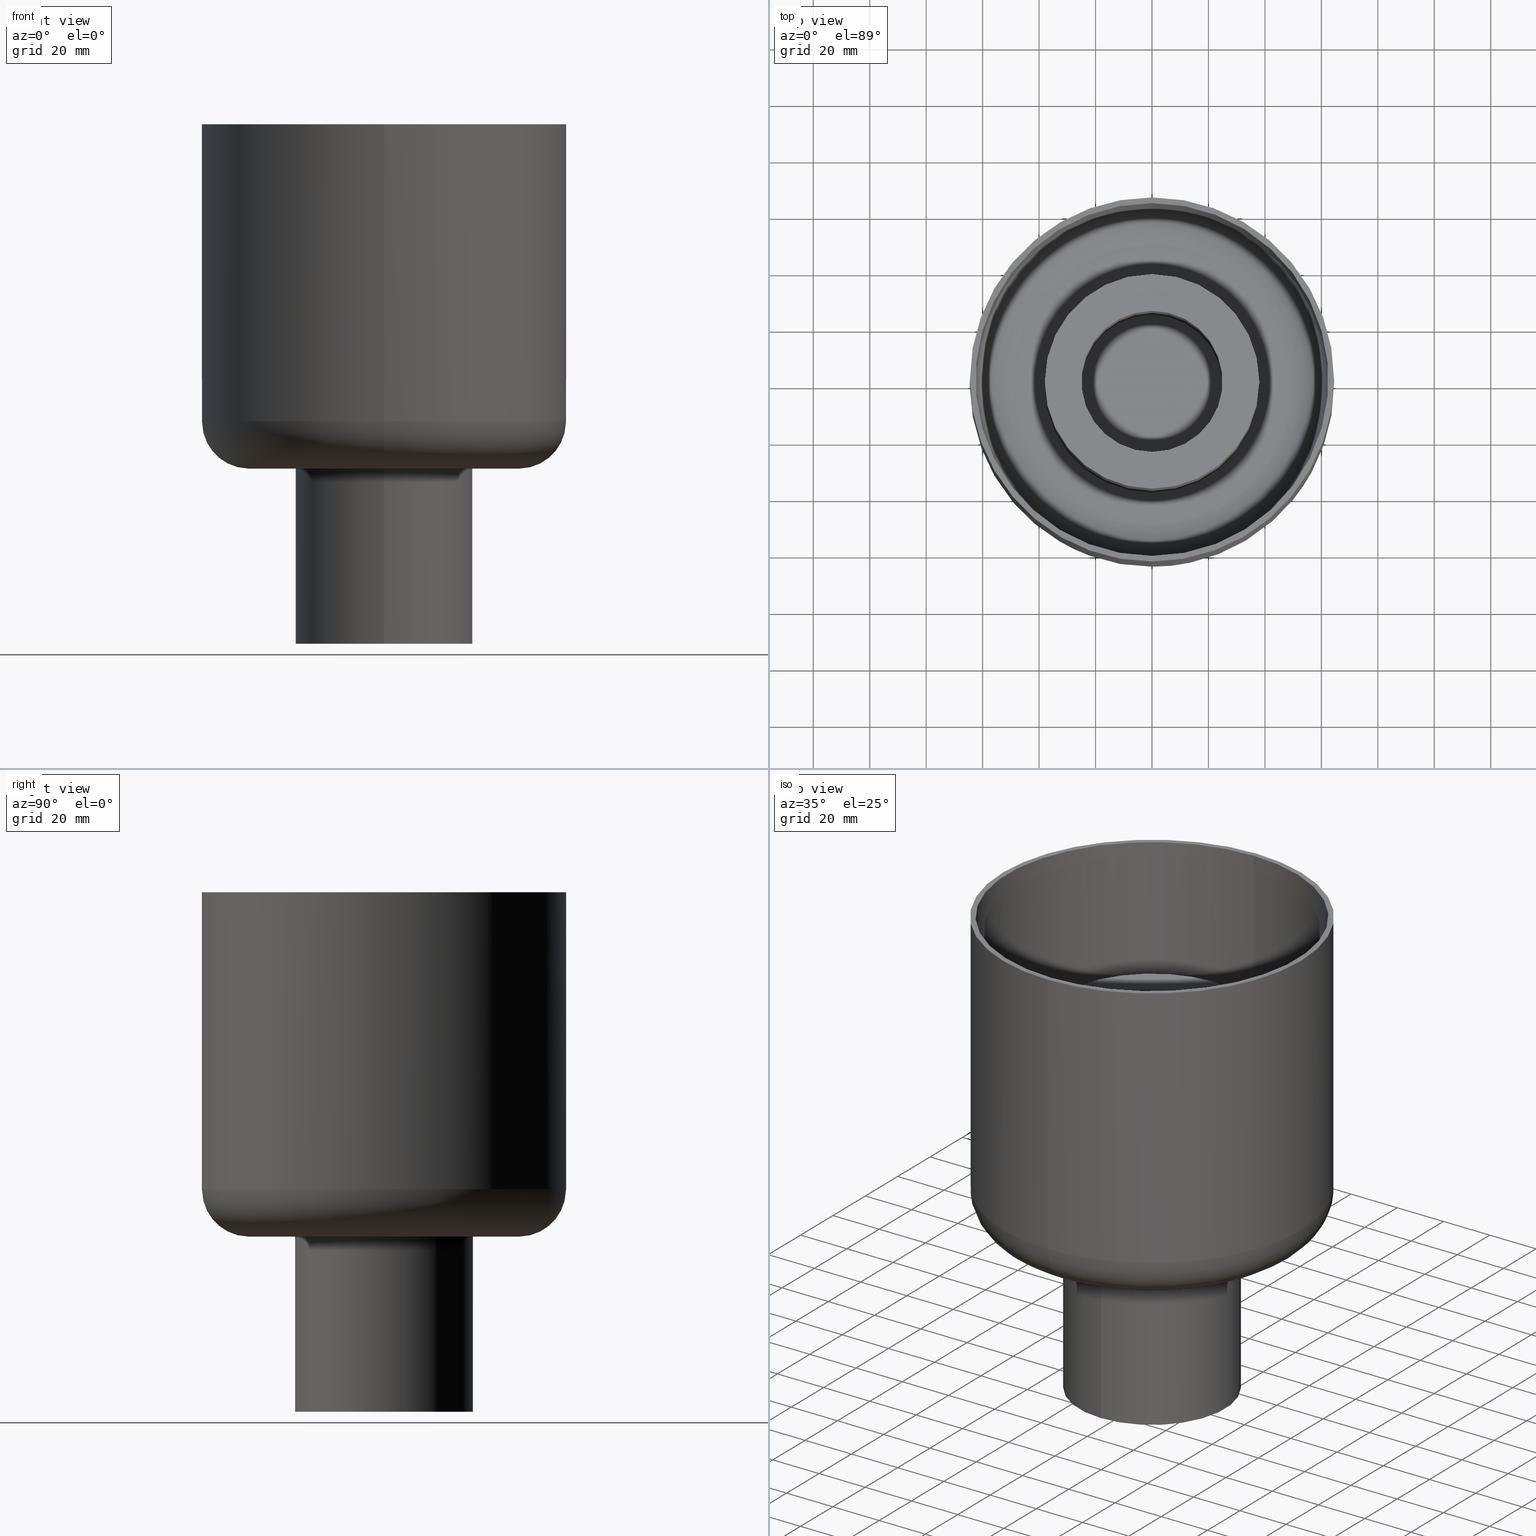
[diagram: canonical four-view strip — front | top / right | iso, engineering-drawing reading convention]
A machine part, canonical four-view strip (front | top / right | iso — engineering-drawing reading convention). The complete STEP part file that produces these views, byte-faithful:
ISO-10303-21;
HEADER;
/* Generated by software containing ST-Developer
 * from STEP Tools, Inc. (www.steptools.com) 
 */

FILE_DESCRIPTION(
/* description */ (''),
/* implementation_level */ '2;1');

FILE_NAME(
/* name */ 
'G:\\Workspace\\resitec\\Packs\\Kategorie\\Glockensifons\\RS560.60.sat.
ipt.stp',
/* time_stamp */ '2020-12-03T12:01:40+01:00',
/* author */ ('ndmes'),
/* organization */ (''),
/* preprocessor_version */ 'ST-DEVELOPER v18.1',
/* originating_system */ 'Autodesk Inventor 2021',
/* authorisation */ '');

FILE_SCHEMA (('AUTOMOTIVE_DESIGN { 1 0 10303 214 3 1 1 }'));
ENDSEC;

DATA;
#10=MECHANICAL_DESIGN_GEOMETRIC_PRESENTATION_REPRESENTATION('',(#15,#16,
#17),#863);
#11=SHAPE_REPRESENTATION_RELATIONSHIP('SRR','None',#870,#12);
#12=ADVANCED_BREP_SHAPE_REPRESENTATION('',(#18,#19,#20),#862);
#13=FACE_BOUND('',#78,.T.);
#14=FACE_BOUND('',#80,.T.);
#15=STYLED_ITEM('',(#879),#18);
#16=STYLED_ITEM('',(#879),#19);
#17=STYLED_ITEM('',(#879),#20);
#18=MANIFOLD_SOLID_BREP('Solid1',#325);
#19=MANIFOLD_SOLID_BREP('Solid2',#326);
#20=MANIFOLD_SOLID_BREP('Solid3',#327);
#21=TOROIDAL_SURFACE('',#357,49.7719268501219,12.7280731498783);
#22=TOROIDAL_SURFACE('',#358,49.7719268501219,12.7280731498783);
#23=TOROIDAL_SURFACE('',#363,47.7044883655415,16.7955116344587);
#24=TOROIDAL_SURFACE('',#364,47.7044883655415,16.7955116344587);
#25=PLANE('',#351);
#26=PLANE('',#353);
#27=PLANE('',#359);
#28=PLANE('',#360);
#29=PLANE('',#361);
#30=PLANE('',#362);
#31=PLANE('',#377);
#32=PLANE('',#378);
#33=PLANE('',#385);
#34=PLANE('',#386);
#35=FACE_OUTER_BOUND('',#59,.T.);
#36=FACE_OUTER_BOUND('',#60,.T.);
#37=FACE_OUTER_BOUND('',#61,.T.);
#38=FACE_OUTER_BOUND('',#62,.T.);
#39=FACE_OUTER_BOUND('',#63,.T.);
#40=FACE_OUTER_BOUND('',#64,.T.);
#41=FACE_OUTER_BOUND('',#65,.T.);
#42=FACE_OUTER_BOUND('',#66,.T.);
#43=FACE_OUTER_BOUND('',#67,.T.);
#44=FACE_OUTER_BOUND('',#68,.T.);
#45=FACE_OUTER_BOUND('',#69,.T.);
#46=FACE_OUTER_BOUND('',#70,.T.);
#47=FACE_OUTER_BOUND('',#71,.T.);
#48=FACE_OUTER_BOUND('',#72,.T.);
#49=FACE_OUTER_BOUND('',#73,.T.);
#50=FACE_OUTER_BOUND('',#74,.T.);
#51=FACE_OUTER_BOUND('',#75,.T.);
#52=FACE_OUTER_BOUND('',#76,.T.);
#53=FACE_OUTER_BOUND('',#77,.T.);
#54=FACE_OUTER_BOUND('',#79,.T.);
#55=FACE_OUTER_BOUND('',#81,.T.);
#56=FACE_OUTER_BOUND('',#82,.T.);
#57=FACE_OUTER_BOUND('',#83,.T.);
#58=FACE_OUTER_BOUND('',#84,.T.);
#59=EDGE_LOOP('',(#207,#208,#209,#210));
#60=EDGE_LOOP('',(#211,#212,#213,#214));
#61=EDGE_LOOP('',(#215,#216,#217,#218));
#62=EDGE_LOOP('',(#219,#220,#221,#222));
#63=EDGE_LOOP('',(#223,#224,#225,#226));
#64=EDGE_LOOP('',(#227,#228,#229,#230));
#65=EDGE_LOOP('',(#231,#232,#233,#234));
#66=EDGE_LOOP('',(#235,#236,#237,#238));
#67=EDGE_LOOP('',(#239,#240));
#68=EDGE_LOOP('',(#241,#242));
#69=EDGE_LOOP('',(#243,#244));
#70=EDGE_LOOP('',(#245,#246));
#71=EDGE_LOOP('',(#247,#248,#249,#250));
#72=EDGE_LOOP('',(#251,#252,#253,#254));
#73=EDGE_LOOP('',(#255,#256,#257,#258));
#74=EDGE_LOOP('',(#259,#260,#261,#262));
#75=EDGE_LOOP('',(#263,#264,#265,#266));
#76=EDGE_LOOP('',(#267,#268,#269,#270));
#77=EDGE_LOOP('',(#271,#272));
#78=EDGE_LOOP('',(#273,#274));
#79=EDGE_LOOP('',(#275,#276));
#80=EDGE_LOOP('',(#277,#278));
#81=EDGE_LOOP('',(#279,#280,#281,#282));
#82=EDGE_LOOP('',(#283,#284,#285,#286));
#83=EDGE_LOOP('',(#287,#288));
#84=EDGE_LOOP('',(#289,#290));
#85=CIRCLE('',#348,64.5000000000002);
#86=CIRCLE('',#350,64.5000000000002);
#87=CIRCLE('',#352,62.5000000000002);
#88=CIRCLE('',#354,62.5000000000002);
#89=CIRCLE('',#366,25.);
#90=CIRCLE('',#367,25.);
#91=CIRCLE('',#369,25.);
#92=CIRCLE('',#370,25.);
#93=CIRCLE('',#372,38.);
#94=CIRCLE('',#373,38.);
#95=CIRCLE('',#375,38.);
#96=CIRCLE('',#376,38.);
#97=CIRCLE('',#380,31.5);
#98=CIRCLE('',#381,31.5);
#99=CIRCLE('',#383,31.5);
#100=CIRCLE('',#384,31.5);
#101=LINE('',#499,#115);
#102=LINE('',#502,#116);
#103=LINE('',#518,#117);
#104=LINE('',#521,#118);
#105=LINE('',#526,#119);
#106=LINE('',#538,#120);
#107=LINE('',#585,#121);
#108=LINE('',#590,#122);
#109=LINE('',#825,#123);
#110=LINE('',#828,#124);
#111=LINE('',#837,#125);
#112=LINE('',#840,#126);
#113=LINE('',#851,#127);
#114=LINE('',#854,#128);
#115=VECTOR('',#391,304.8);
#116=VECTOR('',#394,304.8);
#117=VECTOR('',#401,304.8);
#118=VECTOR('',#404,304.8);
#119=VECTOR('',#411,304.8);
#120=VECTOR('',#412,304.8);
#121=VECTOR('',#421,304.8);
#122=VECTOR('',#426,304.8);
#123=VECTOR('',#437,304.8);
#124=VECTOR('',#440,304.8);
#125=VECTOR('',#451,304.8);
#126=VECTOR('',#454,304.8);
#127=VECTOR('',#469,304.8);
#128=VECTOR('',#472,304.8);
#129=B_SPLINE_CURVE_WITH_KNOTS('',3,(#487,#488,#489,#490,#491,#492,#493,
#494,#495,#496,#497),.UNSPECIFIED.,.F.,.F.,(4,1,1,1,1,1,1,1,4),(0.,0.125,
0.25,0.375,0.5,0.625,0.75,0.875,1.),.UNSPECIFIED.);
#130=B_SPLINE_CURVE_WITH_KNOTS('',3,(#504,#505,#506,#507,#508,#509,#510,
#511,#512,#513,#514),.UNSPECIFIED.,.F.,.F.,(4,1,1,1,1,1,1,1,4),(0.,0.125,
0.25,0.375,0.5,0.625,0.75,0.875,1.),.UNSPECIFIED.);
#131=B_SPLINE_CURVE_WITH_KNOTS('',3,(#528,#529,#530,#531,#532,#533,#534,
#535,#536,#537),.UNSPECIFIED.,.F.,.F.,(4,1,1,1,1,1,1,4),(0.,0.142857142857143,
0.285714285714286,0.428571428571429,0.571428571428571,0.714285714285714,
0.857142857142857,1.),.UNSPECIFIED.);
#132=B_SPLINE_CURVE_WITH_KNOTS('',3,(#540,#541,#542,#543,#544,#545,#546,
#547,#548,#549),.UNSPECIFIED.,.F.,.F.,(4,1,1,1,1,1,1,4),(0.,0.142857142857143,
0.285714285714286,0.428571428571429,0.571428571428571,0.714285714285714,
0.857142857142857,1.),.UNSPECIFIED.);
#133=B_SPLINE_CURVE_WITH_KNOTS('',3,(#552,#553,#554,#555,#556),
 .UNSPECIFIED.,.F.,.F.,(4,1,4),(0.,0.5,1.),.UNSPECIFIED.);
#134=B_SPLINE_CURVE_WITH_KNOTS('',3,(#558,#559,#560,#561,#562,#563,#564,
#565,#566,#567),.UNSPECIFIED.,.F.,.F.,(4,1,1,1,1,1,1,4),(0.,0.142857142857143,
0.285714285714286,0.428571428571429,0.571428571428571,0.714285714285714,
0.857142857142857,1.),.UNSPECIFIED.);
#135=B_SPLINE_CURVE_WITH_KNOTS('',3,(#568,#569,#570,#571,#572),
 .UNSPECIFIED.,.F.,.F.,(4,1,4),(0.,0.5,1.),.UNSPECIFIED.);
#136=B_SPLINE_CURVE_WITH_KNOTS('',3,(#574,#575,#576,#577,#578,#579,#580,
#581,#582,#583),.UNSPECIFIED.,.F.,.F.,(4,1,1,1,1,1,1,4),(0.,0.142857142857143,
0.285714285714286,0.428571428571429,0.571428571428571,0.714285714285714,
0.857142857142857,1.),.UNSPECIFIED.);
#137=B_SPLINE_CURVE_WITH_KNOTS('',3,(#591,#592,#593,#594,#595,#596,#597,
#598,#599,#600),.UNSPECIFIED.,.F.,.F.,(4,1,1,1,1,1,1,4),(0.,0.142857142857143,
0.285714285714286,0.428571428571429,0.571428571428571,0.714285714285714,
0.857142857142857,1.),.UNSPECIFIED.);
#138=B_SPLINE_CURVE_WITH_KNOTS('',3,(#602,#603,#604,#605,#606,#607,#608,
#609,#610,#611),.UNSPECIFIED.,.F.,.F.,(4,1,1,1,1,1,1,4),(0.,0.142857142857143,
0.285714285714286,0.428571428571429,0.571428571428571,0.714285714285714,
0.857142857142857,1.),.UNSPECIFIED.);
#139=B_SPLINE_CURVE_WITH_KNOTS('',3,(#613,#614,#615,#616,#617,#618,#619,
#620,#621,#622,#623,#624,#625,#626,#627,#628,#629,#630,#631,#632,#633,#634,
#635,#636,#637,#638,#639,#640,#641,#642,#643,#644,#645,#646,#647,#648,#649,
#650,#651,#652,#653,#654,#655,#656,#657,#658,#659,#660,#661,#662,#663,#664,
#665,#666,#667,#668,#669,#670,#671,#672,#673,#674,#675,#676,#677,#678,#679,
#680,#681,#682,#683,#684,#685,#686,#687,#688,#689,#690,#691,#692,#693,#694,
#695,#696,#697,#698,#699,#700,#701,#702,#703,#704,#705,#706,#707,#708,#709,
#710,#711,#712,#713,#714,#715),.UNSPECIFIED.,.F.,.F.,(4,3,3,3,3,3,3,3,3,
3,3,3,3,3,3,3,3,3,3,3,3,3,3,3,3,3,3,3,3,3,3,3,3,3,4),(0.,0.0280312962135223,
0.0565897947593608,0.0860713636731308,0.116019515579909,0.146540267381907,
0.177647811120982,0.209355084103488,0.241672974058842,0.274609200328791,
0.308166766326422,0.34234187043375,0.377121184270044,0.412478492514942,
0.449198586732758,0.483623675061961,0.493893843767696,0.498300715537556,
0.502039834296296,0.538422586250105,0.574344910084195,0.609743995866938,
0.644576553043911,0.678815533811602,0.712446616993677,0.745465011656779,
0.777558215542277,0.809092231119628,0.840077025451647,0.870523957961256,
0.900445257379398,0.929611729153235,0.958354526960363,0.98648483739772,
1.),.UNSPECIFIED.);
#140=B_SPLINE_CURVE_WITH_KNOTS('',3,(#716,#717,#718,#719,#720,#721,#722,
#723,#724,#725,#726,#727,#728,#729,#730,#731,#732,#733,#734,#735,#736,#737,
#738,#739,#740,#741,#742,#743,#744,#745,#746,#747,#748,#749,#750,#751,#752,
#753,#754,#755,#756,#757,#758,#759,#760,#761,#762,#763,#764,#765,#766,#767,
#768,#769,#770,#771,#772,#773,#774,#775,#776,#777,#778,#779,#780,#781,#782,
#783,#784,#785,#786,#787,#788,#789,#790,#791,#792,#793,#794,#795,#796,#797,
#798,#799,#800,#801,#802,#803,#804,#805,#806,#807,#808,#809,#810,#811,#812,
#813,#814,#815,#816,#817,#818),.UNSPECIFIED.,.F.,.F.,(4,3,3,3,3,3,3,3,3,
3,3,3,3,3,3,3,3,3,3,3,3,3,3,3,3,3,3,3,3,3,3,3,3,3,4),(0.,0.0280312962136034,
0.0565897947594401,0.0860713636732076,0.116019515580039,0.146540267382073,
0.177647811121092,0.209355084103629,0.241672974059043,0.274609200328942,
0.308166766326558,0.342341870433903,0.377121184270369,0.41247849251534,
0.449198586733132,0.483623675062311,0.493893843768526,0.498300715538562,
0.502039834294189,0.538422586248044,0.57434491008215,0.609743995865032,
0.644576553041988,0.678815533809669,0.712446616991702,0.745465011655011,
0.777558215540569,0.80909223111796,0.840077025449938,0.870523957959576,
0.900445257377577,0.929611729151513,0.95835452695871,0.9864848373962,1.),
 .UNSPECIFIED.);
#141=VERTEX_POINT('',#485);
#142=VERTEX_POINT('',#486);
#143=VERTEX_POINT('',#498);
#144=VERTEX_POINT('',#500);
#145=VERTEX_POINT('',#517);
#146=VERTEX_POINT('',#519);
#147=VERTEX_POINT('',#525);
#148=VERTEX_POINT('',#527);
#149=VERTEX_POINT('',#551);
#150=VERTEX_POINT('',#557);
#151=VERTEX_POINT('',#588);
#152=VERTEX_POINT('',#589);
#153=VERTEX_POINT('',#821);
#154=VERTEX_POINT('',#822);
#155=VERTEX_POINT('',#824);
#156=VERTEX_POINT('',#826);
#157=VERTEX_POINT('',#833);
#158=VERTEX_POINT('',#834);
#159=VERTEX_POINT('',#836);
#160=VERTEX_POINT('',#838);
#161=VERTEX_POINT('',#847);
#162=VERTEX_POINT('',#848);
#163=VERTEX_POINT('',#850);
#164=VERTEX_POINT('',#852);
#165=EDGE_CURVE('',#141,#142,#129,.T.);
#166=EDGE_CURVE('',#143,#141,#101,.T.);
#167=EDGE_CURVE('',#144,#143,#85,.T.);
#168=EDGE_CURVE('',#142,#144,#102,.T.);
#169=EDGE_CURVE('',#142,#141,#130,.T.);
#170=EDGE_CURVE('',#143,#144,#86,.T.);
#171=EDGE_CURVE('',#145,#143,#103,.T.);
#172=EDGE_CURVE('',#146,#145,#87,.T.);
#173=EDGE_CURVE('',#144,#146,#104,.T.);
#174=EDGE_CURVE('',#145,#146,#88,.T.);
#175=EDGE_CURVE('',#147,#145,#105,.T.);
#176=EDGE_CURVE('',#148,#147,#131,.T.);
#177=EDGE_CURVE('',#146,#148,#106,.T.);
#178=EDGE_CURVE('',#147,#148,#132,.T.);
#179=EDGE_CURVE('',#149,#147,#133,.T.);
#180=EDGE_CURVE('',#150,#149,#134,.T.);
#181=EDGE_CURVE('',#148,#150,#135,.T.);
#182=EDGE_CURVE('',#149,#150,#136,.T.);
#183=EDGE_CURVE('',#150,#149,#107,.T.);
#184=EDGE_CURVE('',#151,#152,#108,.T.);
#185=EDGE_CURVE('',#152,#151,#137,.T.);
#186=EDGE_CURVE('',#151,#152,#138,.T.);
#187=EDGE_CURVE('',#141,#151,#139,.T.);
#188=EDGE_CURVE('',#152,#142,#140,.T.);
#189=EDGE_CURVE('',#153,#154,#89,.T.);
#190=EDGE_CURVE('',#155,#153,#109,.T.);
#191=EDGE_CURVE('',#156,#155,#90,.T.);
#192=EDGE_CURVE('',#154,#156,#110,.T.);
#193=EDGE_CURVE('',#154,#153,#91,.T.);
#194=EDGE_CURVE('',#155,#156,#92,.T.);
#195=EDGE_CURVE('',#157,#158,#93,.T.);
#196=EDGE_CURVE('',#159,#157,#111,.T.);
#197=EDGE_CURVE('',#160,#159,#94,.T.);
#198=EDGE_CURVE('',#158,#160,#112,.T.);
#199=EDGE_CURVE('',#158,#157,#95,.T.);
#200=EDGE_CURVE('',#159,#160,#96,.T.);
#201=EDGE_CURVE('',#161,#162,#97,.T.);
#202=EDGE_CURVE('',#163,#161,#113,.T.);
#203=EDGE_CURVE('',#164,#163,#98,.T.);
#204=EDGE_CURVE('',#162,#164,#114,.T.);
#205=EDGE_CURVE('',#162,#161,#99,.T.);
#206=EDGE_CURVE('',#163,#164,#100,.T.);
#207=ORIENTED_EDGE('',*,*,#165,.F.);
#208=ORIENTED_EDGE('',*,*,#166,.F.);
#209=ORIENTED_EDGE('',*,*,#167,.F.);
#210=ORIENTED_EDGE('',*,*,#168,.F.);
#211=ORIENTED_EDGE('',*,*,#169,.F.);
#212=ORIENTED_EDGE('',*,*,#168,.T.);
#213=ORIENTED_EDGE('',*,*,#170,.F.);
#214=ORIENTED_EDGE('',*,*,#166,.T.);
#215=ORIENTED_EDGE('',*,*,#167,.T.);
#216=ORIENTED_EDGE('',*,*,#171,.F.);
#217=ORIENTED_EDGE('',*,*,#172,.F.);
#218=ORIENTED_EDGE('',*,*,#173,.F.);
#219=ORIENTED_EDGE('',*,*,#170,.T.);
#220=ORIENTED_EDGE('',*,*,#173,.T.);
#221=ORIENTED_EDGE('',*,*,#174,.F.);
#222=ORIENTED_EDGE('',*,*,#171,.T.);
#223=ORIENTED_EDGE('',*,*,#172,.T.);
#224=ORIENTED_EDGE('',*,*,#175,.F.);
#225=ORIENTED_EDGE('',*,*,#176,.F.);
#226=ORIENTED_EDGE('',*,*,#177,.F.);
#227=ORIENTED_EDGE('',*,*,#174,.T.);
#228=ORIENTED_EDGE('',*,*,#177,.T.);
#229=ORIENTED_EDGE('',*,*,#178,.F.);
#230=ORIENTED_EDGE('',*,*,#175,.T.);
#231=ORIENTED_EDGE('',*,*,#176,.T.);
#232=ORIENTED_EDGE('',*,*,#179,.F.);
#233=ORIENTED_EDGE('',*,*,#180,.F.);
#234=ORIENTED_EDGE('',*,*,#181,.F.);
#235=ORIENTED_EDGE('',*,*,#178,.T.);
#236=ORIENTED_EDGE('',*,*,#181,.T.);
#237=ORIENTED_EDGE('',*,*,#182,.F.);
#238=ORIENTED_EDGE('',*,*,#179,.T.);
#239=ORIENTED_EDGE('',*,*,#180,.T.);
#240=ORIENTED_EDGE('',*,*,#183,.F.);
#241=ORIENTED_EDGE('',*,*,#182,.T.);
#242=ORIENTED_EDGE('',*,*,#183,.T.);
#243=ORIENTED_EDGE('',*,*,#184,.F.);
#244=ORIENTED_EDGE('',*,*,#185,.F.);
#245=ORIENTED_EDGE('',*,*,#184,.T.);
#246=ORIENTED_EDGE('',*,*,#186,.F.);
#247=ORIENTED_EDGE('',*,*,#185,.T.);
#248=ORIENTED_EDGE('',*,*,#187,.F.);
#249=ORIENTED_EDGE('',*,*,#165,.T.);
#250=ORIENTED_EDGE('',*,*,#188,.F.);
#251=ORIENTED_EDGE('',*,*,#186,.T.);
#252=ORIENTED_EDGE('',*,*,#188,.T.);
#253=ORIENTED_EDGE('',*,*,#169,.T.);
#254=ORIENTED_EDGE('',*,*,#187,.T.);
#255=ORIENTED_EDGE('',*,*,#189,.F.);
#256=ORIENTED_EDGE('',*,*,#190,.F.);
#257=ORIENTED_EDGE('',*,*,#191,.F.);
#258=ORIENTED_EDGE('',*,*,#192,.F.);
#259=ORIENTED_EDGE('',*,*,#193,.F.);
#260=ORIENTED_EDGE('',*,*,#192,.T.);
#261=ORIENTED_EDGE('',*,*,#194,.F.);
#262=ORIENTED_EDGE('',*,*,#190,.T.);
#263=ORIENTED_EDGE('',*,*,#195,.F.);
#264=ORIENTED_EDGE('',*,*,#196,.F.);
#265=ORIENTED_EDGE('',*,*,#197,.F.);
#266=ORIENTED_EDGE('',*,*,#198,.F.);
#267=ORIENTED_EDGE('',*,*,#199,.F.);
#268=ORIENTED_EDGE('',*,*,#198,.T.);
#269=ORIENTED_EDGE('',*,*,#200,.F.);
#270=ORIENTED_EDGE('',*,*,#196,.T.);
#271=ORIENTED_EDGE('',*,*,#197,.T.);
#272=ORIENTED_EDGE('',*,*,#200,.T.);
#273=ORIENTED_EDGE('',*,*,#191,.T.);
#274=ORIENTED_EDGE('',*,*,#194,.T.);
#275=ORIENTED_EDGE('',*,*,#199,.T.);
#276=ORIENTED_EDGE('',*,*,#195,.T.);
#277=ORIENTED_EDGE('',*,*,#193,.T.);
#278=ORIENTED_EDGE('',*,*,#189,.T.);
#279=ORIENTED_EDGE('',*,*,#201,.F.);
#280=ORIENTED_EDGE('',*,*,#202,.F.);
#281=ORIENTED_EDGE('',*,*,#203,.F.);
#282=ORIENTED_EDGE('',*,*,#204,.F.);
#283=ORIENTED_EDGE('',*,*,#205,.F.);
#284=ORIENTED_EDGE('',*,*,#204,.T.);
#285=ORIENTED_EDGE('',*,*,#206,.F.);
#286=ORIENTED_EDGE('',*,*,#202,.T.);
#287=ORIENTED_EDGE('',*,*,#205,.T.);
#288=ORIENTED_EDGE('',*,*,#201,.T.);
#289=ORIENTED_EDGE('',*,*,#203,.T.);
#290=ORIENTED_EDGE('',*,*,#206,.T.);
#291=CYLINDRICAL_SURFACE('',#347,64.5000000000002);
#292=CYLINDRICAL_SURFACE('',#349,64.5000000000002);
#293=CYLINDRICAL_SURFACE('',#355,62.5000000000002);
#294=CYLINDRICAL_SURFACE('',#356,62.5000000000002);
#295=CYLINDRICAL_SURFACE('',#365,25.);
#296=CYLINDRICAL_SURFACE('',#368,25.);
#297=CYLINDRICAL_SURFACE('',#371,38.);
#298=CYLINDRICAL_SURFACE('',#374,38.);
#299=CYLINDRICAL_SURFACE('',#379,31.5);
#300=CYLINDRICAL_SURFACE('',#382,31.5);
#301=ADVANCED_FACE('',(#35),#291,.T.);
#302=ADVANCED_FACE('',(#36),#292,.T.);
#303=ADVANCED_FACE('',(#37),#25,.F.);
#304=ADVANCED_FACE('',(#38),#26,.F.);
#305=ADVANCED_FACE('',(#39),#293,.F.);
#306=ADVANCED_FACE('',(#40),#294,.F.);
#307=ADVANCED_FACE('',(#41),#21,.F.);
#308=ADVANCED_FACE('',(#42),#22,.F.);
#309=ADVANCED_FACE('',(#43),#27,.F.);
#310=ADVANCED_FACE('',(#44),#28,.F.);
#311=ADVANCED_FACE('',(#45),#29,.T.);
#312=ADVANCED_FACE('',(#46),#30,.T.);
#313=ADVANCED_FACE('',(#47),#23,.T.);
#314=ADVANCED_FACE('',(#48),#24,.T.);
#315=ADVANCED_FACE('',(#49),#295,.F.);
#316=ADVANCED_FACE('',(#50),#296,.F.);
#317=ADVANCED_FACE('',(#51),#297,.T.);
#318=ADVANCED_FACE('',(#52),#298,.T.);
#319=ADVANCED_FACE('',(#53,#13),#31,.T.);
#320=ADVANCED_FACE('',(#54,#14),#32,.T.);
#321=ADVANCED_FACE('',(#55),#299,.T.);
#322=ADVANCED_FACE('',(#56),#300,.T.);
#323=ADVANCED_FACE('',(#57),#33,.T.);
#324=ADVANCED_FACE('',(#58),#34,.T.);
#325=CLOSED_SHELL('',(#301,#302,#303,#304,#305,#306,#307,#308,#309,#310,
#311,#312,#313,#314));
#326=CLOSED_SHELL('',(#315,#316,#317,#318,#319,#320));
#327=CLOSED_SHELL('',(#321,#322,#323,#324));
#328=DERIVED_UNIT_ELEMENT(#330,1.);
#329=DERIVED_UNIT_ELEMENT(#865,3.);
#330=(
MASS_UNIT()
NAMED_UNIT(*)
SI_UNIT($,.GRAM.)
);
#331=DERIVED_UNIT((#328,#329));
#332=MEASURE_REPRESENTATION_ITEM('density measure',
POSITIVE_RATIO_MEASURE(1.),#331);
#333=PROPERTY_DEFINITION_REPRESENTATION(#338,#335);
#334=PROPERTY_DEFINITION_REPRESENTATION(#339,#336);
#335=REPRESENTATION('material name',(#337),#862);
#336=REPRESENTATION('density',(#332),#862);
#337=DESCRIPTIVE_REPRESENTATION_ITEM('Generic','Generic');
#338=PROPERTY_DEFINITION('material property','material name',#872);
#339=PROPERTY_DEFINITION('material property','density of part',#872);
#340=DATE_TIME_ROLE('creation_date');
#341=APPLIED_DATE_AND_TIME_ASSIGNMENT(#342,#340,(#872));
#342=DATE_AND_TIME(#343,#344);
#343=CALENDAR_DATE(2020,3,12);
#344=LOCAL_TIME(0,0,0.,#345);
#345=COORDINATED_UNIVERSAL_TIME_OFFSET(0,0,.BEHIND.);
#346=AXIS2_PLACEMENT_3D('placement',#483,#387,#388);
#347=AXIS2_PLACEMENT_3D('',#484,#389,#390);
#348=AXIS2_PLACEMENT_3D('',#501,#392,#393);
#349=AXIS2_PLACEMENT_3D('',#503,#395,#396);
#350=AXIS2_PLACEMENT_3D('',#515,#397,#398);
#351=AXIS2_PLACEMENT_3D('',#516,#399,#400);
#352=AXIS2_PLACEMENT_3D('',#520,#402,#403);
#353=AXIS2_PLACEMENT_3D('',#522,#405,#406);
#354=AXIS2_PLACEMENT_3D('',#523,#407,#408);
#355=AXIS2_PLACEMENT_3D('',#524,#409,#410);
#356=AXIS2_PLACEMENT_3D('',#539,#413,#414);
#357=AXIS2_PLACEMENT_3D('',#550,#415,#416);
#358=AXIS2_PLACEMENT_3D('',#573,#417,#418);
#359=AXIS2_PLACEMENT_3D('',#584,#419,#420);
#360=AXIS2_PLACEMENT_3D('',#586,#422,#423);
#361=AXIS2_PLACEMENT_3D('',#587,#424,#425);
#362=AXIS2_PLACEMENT_3D('',#601,#427,#428);
#363=AXIS2_PLACEMENT_3D('',#612,#429,#430);
#364=AXIS2_PLACEMENT_3D('',#819,#431,#432);
#365=AXIS2_PLACEMENT_3D('',#820,#433,#434);
#366=AXIS2_PLACEMENT_3D('',#823,#435,#436);
#367=AXIS2_PLACEMENT_3D('',#827,#438,#439);
#368=AXIS2_PLACEMENT_3D('',#829,#441,#442);
#369=AXIS2_PLACEMENT_3D('',#830,#443,#444);
#370=AXIS2_PLACEMENT_3D('',#831,#445,#446);
#371=AXIS2_PLACEMENT_3D('',#832,#447,#448);
#372=AXIS2_PLACEMENT_3D('',#835,#449,#450);
#373=AXIS2_PLACEMENT_3D('',#839,#452,#453);
#374=AXIS2_PLACEMENT_3D('',#841,#455,#456);
#375=AXIS2_PLACEMENT_3D('',#842,#457,#458);
#376=AXIS2_PLACEMENT_3D('',#843,#459,#460);
#377=AXIS2_PLACEMENT_3D('',#844,#461,#462);
#378=AXIS2_PLACEMENT_3D('',#845,#463,#464);
#379=AXIS2_PLACEMENT_3D('',#846,#465,#466);
#380=AXIS2_PLACEMENT_3D('',#849,#467,#468);
#381=AXIS2_PLACEMENT_3D('',#853,#470,#471);
#382=AXIS2_PLACEMENT_3D('',#855,#473,#474);
#383=AXIS2_PLACEMENT_3D('',#856,#475,#476);
#384=AXIS2_PLACEMENT_3D('',#857,#477,#478);
#385=AXIS2_PLACEMENT_3D('',#858,#479,#480);
#386=AXIS2_PLACEMENT_3D('',#859,#481,#482);
#387=DIRECTION('axis',(0.,0.,1.));
#388=DIRECTION('refdir',(1.,0.,0.));
#389=DIRECTION('center_axis',(0.,-1.63087261263545E-15,-1.));
#390=DIRECTION('ref_axis',(1.61554457443259E-15,-1.,1.57393478095696E-15));
#391=DIRECTION('',(0.,-1.60827728532819E-15,-1.));
#392=DIRECTION('center_axis',(0.,1.63087261263545E-15,1.));
#393=DIRECTION('ref_axis',(1.61554457443259E-15,-1.,1.57393478095696E-15));
#394=DIRECTION('',(0.,1.60827728532819E-15,1.));
#395=DIRECTION('center_axis',(0.,-1.63087261263545E-15,-1.));
#396=DIRECTION('ref_axis',(1.61554457443259E-15,-1.,1.57393478095696E-15));
#397=DIRECTION('center_axis',(0.,1.63087261263545E-15,1.));
#398=DIRECTION('ref_axis',(1.61554457443259E-15,-1.,1.57393478095696E-15));
#399=DIRECTION('center_axis',(0.,-1.63087261263545E-15,-1.));
#400=DIRECTION('ref_axis',(0.,-1.,1.63087261263545E-15));
#401=DIRECTION('',(-3.23108914886518E-15,1.,-1.63087261263544E-15));
#402=DIRECTION('center_axis',(0.,1.63087261263545E-15,1.));
#403=DIRECTION('ref_axis',(1.61554457443259E-15,-1.,1.62430069394758E-15));
#404=DIRECTION('',(0.,1.,-1.63087261263545E-15));
#405=DIRECTION('center_axis',(0.,-1.63087261263545E-15,-1.));
#406=DIRECTION('ref_axis',(0.,-1.,1.63087261263545E-15));
#407=DIRECTION('center_axis',(0.,1.63087261263545E-15,1.));
#408=DIRECTION('ref_axis',(1.61554457443259E-15,-1.,1.62430069394758E-15));
#409=DIRECTION('center_axis',(0.,-1.63087261263545E-15,-1.));
#410=DIRECTION('ref_axis',(1.61554457443259E-15,-1.,1.62430069394758E-15));
#411=DIRECTION('',(0.,1.57728115753224E-15,1.));
#412=DIRECTION('',(0.,-1.57728115753224E-15,-1.));
#413=DIRECTION('center_axis',(0.,-1.63087261263545E-15,-1.));
#414=DIRECTION('ref_axis',(1.61554457443259E-15,-1.,1.62430069394758E-15));
#415=DIRECTION('center_axis',(0.,-1.63087261263545E-15,-1.));
#416=DIRECTION('ref_axis',(0.,-1.,1.59161572810262E-15));
#417=DIRECTION('center_axis',(0.,-1.63087261263545E-15,-1.));
#418=DIRECTION('ref_axis',(0.,-1.,1.59161572810262E-15));
#419=DIRECTION('center_axis',(0.,-1.63087261263545E-15,-1.));
#420=DIRECTION('ref_axis',(0.,-1.,1.63087261263545E-15));
#421=DIRECTION('',(-3.23108914886517E-15,1.,-1.69973315944126E-15));
#422=DIRECTION('center_axis',(0.,-1.63087261263545E-15,-1.));
#423=DIRECTION('ref_axis',(0.,-1.,1.63087261263545E-15));
#424=DIRECTION('center_axis',(0.,-1.63087261263545E-15,-1.));
#425=DIRECTION('ref_axis',(0.,-1.,1.63087261263545E-15));
#426=DIRECTION('',(3.23108914886517E-15,-1.,1.77339695644961E-15));
#427=DIRECTION('center_axis',(0.,-1.63087261263545E-15,-1.));
#428=DIRECTION('ref_axis',(0.,-1.,1.63087261263545E-15));
#429=DIRECTION('center_axis',(0.,-1.63087261263545E-15,-1.));
#430=DIRECTION('ref_axis',(0.,-1.,1.54226330242502E-15));
#431=DIRECTION('center_axis',(0.,-1.63087261263545E-15,-1.));
#432=DIRECTION('ref_axis',(0.,-1.,1.54226330242502E-15));
#433=DIRECTION('center_axis',(0.,-3.23308212042804E-15,-1.));
#434=DIRECTION('ref_axis',(1.61554457443259E-15,-1.,3.38395977905748E-15));
#435=DIRECTION('center_axis',(0.,-3.23308212042804E-15,-1.));
#436=DIRECTION('ref_axis',(1.61554457443259E-15,-1.,3.38395977905748E-15));
#437=DIRECTION('',(0.,3.2498394219607E-15,1.));
#438=DIRECTION('center_axis',(0.,3.23308212042804E-15,1.));
#439=DIRECTION('ref_axis',(1.61554457443259E-15,-1.,3.38395977905748E-15));
#440=DIRECTION('',(0.,-3.2498394219607E-15,-1.));
#441=DIRECTION('center_axis',(0.,-3.23308212042804E-15,-1.));
#442=DIRECTION('ref_axis',(1.61554457443259E-15,-1.,3.38395977905748E-15));
#443=DIRECTION('center_axis',(0.,-3.23308212042804E-15,-1.));
#444=DIRECTION('ref_axis',(1.61554457443259E-15,-1.,3.38395977905748E-15));
#445=DIRECTION('center_axis',(0.,3.23308212042804E-15,1.));
#446=DIRECTION('ref_axis',(1.61554457443259E-15,-1.,3.38395977905748E-15));
#447=DIRECTION('center_axis',(0.,3.23308212042804E-15,1.));
#448=DIRECTION('ref_axis',(-1.61554457443259E-15,-1.,3.1168050596582E-15));
#449=DIRECTION('center_axis',(0.,3.23308212042804E-15,1.));
#450=DIRECTION('ref_axis',(-1.61554457443259E-15,-1.,3.1168050596582E-15));
#451=DIRECTION('',(0.,3.2498394219607E-15,1.));
#452=DIRECTION('center_axis',(0.,-3.23308212042804E-15,-1.));
#453=DIRECTION('ref_axis',(-1.61554457443259E-15,-1.,3.1168050596582E-15));
#454=DIRECTION('',(0.,-3.2498394219607E-15,-1.));
#455=DIRECTION('center_axis',(0.,3.23308212042804E-15,1.));
#456=DIRECTION('ref_axis',(-1.61554457443259E-15,-1.,3.1168050596582E-15));
#457=DIRECTION('center_axis',(0.,3.23308212042804E-15,1.));
#458=DIRECTION('ref_axis',(-1.61554457443259E-15,-1.,3.1168050596582E-15));
#459=DIRECTION('center_axis',(0.,-3.23308212042804E-15,-1.));
#460=DIRECTION('ref_axis',(-1.61554457443259E-15,-1.,3.1168050596582E-15));
#461=DIRECTION('center_axis',(0.,-3.23308212042804E-15,-1.));
#462=DIRECTION('ref_axis',(-1.,0.,0.));
#463=DIRECTION('center_axis',(0.,3.23308212042804E-15,1.));
#464=DIRECTION('ref_axis',(1.,0.,0.));
#465=DIRECTION('center_axis',(0.,3.23308212042804E-15,1.));
#466=DIRECTION('ref_axis',(-1.61554457443259E-15,-1.,3.2228188371976E-15));
#467=DIRECTION('center_axis',(0.,3.23308212042804E-15,1.));
#468=DIRECTION('ref_axis',(-1.61554457443259E-15,-1.,3.2228188371976E-15));
#469=DIRECTION('',(0.,3.20657479063914E-15,1.));
#470=DIRECTION('center_axis',(0.,-3.23308212042804E-15,-1.));
#471=DIRECTION('ref_axis',(-1.61554457443259E-15,-1.,3.2228188371976E-15));
#472=DIRECTION('',(0.,-3.20657479063914E-15,-1.));
#473=DIRECTION('center_axis',(0.,3.23308212042804E-15,1.));
#474=DIRECTION('ref_axis',(-1.61554457443259E-15,-1.,3.2228188371976E-15));
#475=DIRECTION('center_axis',(0.,3.23308212042804E-15,1.));
#476=DIRECTION('ref_axis',(-1.61554457443259E-15,-1.,3.2228188371976E-15));
#477=DIRECTION('center_axis',(0.,-3.23308212042804E-15,-1.));
#478=DIRECTION('ref_axis',(-1.61554457443259E-15,-1.,3.2228188371976E-15));
#479=DIRECTION('center_axis',(0.,3.23308212042804E-15,1.));
#480=DIRECTION('ref_axis',(1.,0.,0.));
#481=DIRECTION('center_axis',(0.,-3.23308212042804E-15,-1.));
#482=DIRECTION('ref_axis',(-1.,0.,0.));
#483=CARTESIAN_POINT('',(0.,0.,0.));
#484=CARTESIAN_POINT('Origin',(-1.04202625050902E-13,0.,-142.));
#485=CARTESIAN_POINT('',(-2.08405250101804E-13,64.5000000000003,-105.204488365541));
#486=CARTESIAN_POINT('',(0.,-64.5000000000002,-105.204488365541));
#487=CARTESIAN_POINT('Ctrl Pts',(-2.08405250101804E-13,64.5000000000003,
-105.204488365541));
#488=CARTESIAN_POINT('Ctrl Pts',(8.47701262546022,64.58485089836,-105.204488365541));
#489=CARTESIAN_POINT('Ctrl Pts',(25.3093772856422,61.1022418982156,-105.204488365541));
#490=CARTESIAN_POINT('Ctrl Pts',(46.8001488873509,46.8062560905754,-105.204488365541));
#491=CARTESIAN_POINT('Ctrl Pts',(61.1403514841478,25.3230580586791,-105.204488365541));
#492=CARTESIAN_POINT('Ctrl Pts',(66.1798242579264,3.96557786608298E-13,
-105.204488365541));
#493=CARTESIAN_POINT('Ctrl Pts',(61.1403514841481,-25.3230580586784,-105.204488365541));
#494=CARTESIAN_POINT('Ctrl Pts',(46.8001488873514,-46.8062560905748,-105.204488365541));
#495=CARTESIAN_POINT('Ctrl Pts',(25.3093772856428,-61.1022418982153,-105.204488365541));
#496=CARTESIAN_POINT('Ctrl Pts',(8.47701262546084,-64.5848508983598,-105.204488365541));
#497=CARTESIAN_POINT('Ctrl Pts',(4.16121304080974E-13,-64.5000000000002,
-105.204488365541));
#498=CARTESIAN_POINT('',(-2.08405250101804E-13,64.5000000000005,-1.86117787848161E-13));
#499=CARTESIAN_POINT('',(-2.08405250101804E-13,64.5000000000005,-1.86117787848161E-13));
#500=CARTESIAN_POINT('',(0.,-64.5,1.69197988952874E-14));
#501=CARTESIAN_POINT('Origin',(-1.04202625050902E-13,2.31583910994234E-13,
-8.5265128291212E-14));
#502=CARTESIAN_POINT('',(0.,-64.5000000000002,-105.204488365541));
#503=CARTESIAN_POINT('Origin',(-1.04202625050902E-13,0.,-142.));
#504=CARTESIAN_POINT('Ctrl Pts',(0.,-64.5000000000002,-105.204488365541));
#505=CARTESIAN_POINT('Ctrl Pts',(-8.47701262546043,-64.5848508983598,-105.204488365541));
#506=CARTESIAN_POINT('Ctrl Pts',(-25.3093772856424,-61.1022418982154,-105.204488365541));
#507=CARTESIAN_POINT('Ctrl Pts',(-46.8001488873511,-46.8062560905751,-105.204488365541));
#508=CARTESIAN_POINT('Ctrl Pts',(-61.1403514841479,-25.3230580586788,-105.204488365541));
#509=CARTESIAN_POINT('Ctrl Pts',(-66.1798242579264,-4.86444218239512E-14,
-105.204488365541));
#510=CARTESIAN_POINT('Ctrl Pts',(-61.140351484148,25.3230580586787,-105.204488365541));
#511=CARTESIAN_POINT('Ctrl Pts',(-46.8001488873512,46.8062560905751,-105.204488365541));
#512=CARTESIAN_POINT('Ctrl Pts',(-25.3093772856426,61.1022418982155,-105.204488365541));
#513=CARTESIAN_POINT('Ctrl Pts',(-8.47701262546063,64.5848508983599,-105.204488365541));
#514=CARTESIAN_POINT('Ctrl Pts',(-2.08853767613704E-13,64.5000000000003,
-105.204488365541));
#515=CARTESIAN_POINT('Origin',(-1.04202625050902E-13,2.31583910994234E-13,
-8.5265128291212E-14));
#516=CARTESIAN_POINT('Origin',(0.,2.31583910994234E-13,-8.45989944764369E-14));
#517=CARTESIAN_POINT('',(-2.03037586743449E-13,62.5000000000004,-1.86528532766153E-13));
#518=CARTESIAN_POINT('',(-2.01943071804074E-13,62.5000000000004,-1.86528532766153E-13));
#519=CARTESIAN_POINT('',(0.,-62.4999999999999,1.73305438132791E-14));
#520=CARTESIAN_POINT('Origin',(-1.00971535902037E-13,2.31583910994234E-13,
-8.5265128291212E-14));
#521=CARTESIAN_POINT('',(0.,-64.4999999999999,2.059228903855E-14));
#522=CARTESIAN_POINT('Origin',(0.,2.31583910994234E-13,-8.45989944764369E-14));
#523=CARTESIAN_POINT('Origin',(-1.00971535902037E-13,2.31583910994234E-13,
-8.5265128291212E-14));
#524=CARTESIAN_POINT('Origin',(-1.00971535902037E-13,0.,-142.));
#525=CARTESIAN_POINT('',(-2.01943071804074E-13,62.5000000000002,-107.271926850122));
#526=CARTESIAN_POINT('',(-2.01943071804074E-13,62.5000000000002,-107.271926850122));
#527=CARTESIAN_POINT('',(0.,-62.5000000000001,-107.271926850122));
#528=CARTESIAN_POINT('Ctrl Pts',(2.37352689914374E-13,-62.5000000000001,
-107.271926850122));
#529=CARTESIAN_POINT('Ctrl Pts',(9.41376172392396,-62.6365253742047,-107.271926850122));
#530=CARTESIAN_POINT('Ctrl Pts',(28.0129003174215,-58.1693868891731,-107.271926850122));
#531=CARTESIAN_POINT('Ctrl Pts',(50.5406084722248,-40.3156832899942,-107.271926850122));
#532=CARTESIAN_POINT('Ctrl Pts',(63.0114717191921,-14.3765556478743,-107.271926850122));
#533=CARTESIAN_POINT('Ctrl Pts',(63.011471719192,14.3765556478748,-107.271926850122));
#534=CARTESIAN_POINT('Ctrl Pts',(50.5406084722245,40.3156832899947,-107.271926850122));
#535=CARTESIAN_POINT('Ctrl Pts',(28.012900317421,58.1693868891734,-107.271926850122));
#536=CARTESIAN_POINT('Ctrl Pts',(9.4137617239235,62.6365253742049,-107.271926850122));
#537=CARTESIAN_POINT('Ctrl Pts',(-1.98344986268584E-13,62.5000000000002,
-107.271926850122));
#538=CARTESIAN_POINT('',(0.,-62.4999999999999,1.69197988952874E-14));
#539=CARTESIAN_POINT('Origin',(-1.00971535902037E-13,0.,-142.));
#540=CARTESIAN_POINT('Ctrl Pts',(-2.01943071804074E-13,62.5000000000002,
-107.271926850122));
#541=CARTESIAN_POINT('Ctrl Pts',(-9.41376172392393,62.6365253742048,-107.271926850122));
#542=CARTESIAN_POINT('Ctrl Pts',(-28.0129003174214,58.1693868891732,-107.271926850122));
#543=CARTESIAN_POINT('Ctrl Pts',(-50.5406084722247,40.3156832899944,-107.271926850122));
#544=CARTESIAN_POINT('Ctrl Pts',(-63.0114717191921,14.3765556478745,-107.271926850122));
#545=CARTESIAN_POINT('Ctrl Pts',(-63.011471719192,-14.3765556478746,-107.271926850122));
#546=CARTESIAN_POINT('Ctrl Pts',(-50.5406084722247,-40.3156832899945,-107.271926850122));
#547=CARTESIAN_POINT('Ctrl Pts',(-28.0129003174212,-58.1693868891732,-107.271926850122));
#548=CARTESIAN_POINT('Ctrl Pts',(-9.41376172392372,-62.6365253742047,-107.271926850122));
#549=CARTESIAN_POINT('Ctrl Pts',(-3.65163628501808E-15,-62.5000000000001,
-107.271926850122));
#550=CARTESIAN_POINT('Origin',(0.,5.66370633897373E-14,-107.271926850122));
#551=CARTESIAN_POINT('',(-1.6081753276354E-13,49.7719268501219,-120.));
#552=CARTESIAN_POINT('Ctrl Pts',(-1.6081753276354E-13,49.7719268501219,
-120.));
#553=CARTESIAN_POINT('Ctrl Pts',(-1.7335004128046E-13,53.6506525489537,
-119.636034648872));
#554=CARTESIAN_POINT('Ctrl Pts',(-1.92736806304136E-13,59.6507237727653,
-117.150723772765));
#555=CARTESIAN_POINT('Ctrl Pts',(-2.00767067307483E-13,62.1360346488726,
-111.150652548954));
#556=CARTESIAN_POINT('Ctrl Pts',(-2.01943071804074E-13,62.5000000000002,
-107.271926850122));
#557=CARTESIAN_POINT('',(0.,-49.7719268501218,-120.));
#558=CARTESIAN_POINT('Ctrl Pts',(3.17246229286638E-13,-49.7719268501218,
-120.));
#559=CARTESIAN_POINT('Ctrl Pts',(7.49665695852203,-49.8806489451313,-120.));
#560=CARTESIAN_POINT('Ctrl Pts',(22.3080964073354,-46.3232395066296,-120.));
#561=CARTESIAN_POINT('Ctrl Pts',(40.2480554854435,-32.1054278339562,-120.));
#562=CARTESIAN_POINT('Ctrl Pts',(50.1792377780183,-11.4487820170032,-120.));
#563=CARTESIAN_POINT('Ctrl Pts',(50.1792377780182,11.4487820170037,-120.));
#564=CARTESIAN_POINT('Ctrl Pts',(40.2480554854432,32.1054278339566,-120.));
#565=CARTESIAN_POINT('Ctrl Pts',(22.3080964073349,46.3232395066299,-120.));
#566=CARTESIAN_POINT('Ctrl Pts',(7.49665695852156,49.8806489451315,-120.));
#567=CARTESIAN_POINT('Ctrl Pts',(-1.56789034880256E-13,49.7719268501219,
-120.));
#568=CARTESIAN_POINT('Ctrl Pts',(0.,-62.5000000000001,-107.271926850122));
#569=CARTESIAN_POINT('Ctrl Pts',(0.,-62.1360346488725,-111.150652548953));
#570=CARTESIAN_POINT('Ctrl Pts',(0.,-59.6507237727652,-117.150723772765));
#571=CARTESIAN_POINT('Ctrl Pts',(0.,-53.6506525489537,-119.636034648872));
#572=CARTESIAN_POINT('Ctrl Pts',(0.,-49.7719268501218,-120.));
#573=CARTESIAN_POINT('Origin',(0.,5.66370633897373E-14,-107.271926850122));
#574=CARTESIAN_POINT('Ctrl Pts',(-1.6073808950523E-13,49.7719268501219,
-120.));
#575=CARTESIAN_POINT('Ctrl Pts',(-7.49665695852188,49.8806489451314,-120.));
#576=CARTESIAN_POINT('Ctrl Pts',(-22.3080964073352,46.3232395066298,-120.));
#577=CARTESIAN_POINT('Ctrl Pts',(-40.2480554854434,32.1054278339564,-120.));
#578=CARTESIAN_POINT('Ctrl Pts',(-50.1792377780182,11.4487820170034,-120.));
#579=CARTESIAN_POINT('Ctrl Pts',(-50.1792377780182,-11.4487820170035,-120.));
#580=CARTESIAN_POINT('Ctrl Pts',(-40.2480554854433,-32.1054278339565,-120.));
#581=CARTESIAN_POINT('Ctrl Pts',(-22.3080964073351,-46.3232395066298,-120.));
#582=CARTESIAN_POINT('Ctrl Pts',(-7.49665695852171,-49.8806489451314,-120.));
#583=CARTESIAN_POINT('Ctrl Pts',(-2.89156719401884E-15,-49.7719268501218,
-120.));
#584=CARTESIAN_POINT('Origin',(0.,3.58791974779803E-14,-120.));
#585=CARTESIAN_POINT('',(-1.15954550950414E-28,7.17663381937169E-14,-120.));
#586=CARTESIAN_POINT('Origin',(0.,3.58791974779803E-14,-120.));
#587=CARTESIAN_POINT('Origin',(0.,3.26174522527093E-14,-122.));
#588=CARTESIAN_POINT('',(-1.58623114643319E-13,47.7044883655416,-122.));
#589=CARTESIAN_POINT('',(0.,-47.7044883655415,-122.));
#590=CARTESIAN_POINT('',(-1.54137454710066E-13,47.7044883655416,-122.));
#591=CARTESIAN_POINT('Ctrl Pts',(1.81164618152803E-13,-47.7044883655415,
-122.));
#592=CARTESIAN_POINT('Ctrl Pts',(7.18525898615857,-47.808694335547,-122.));
#593=CARTESIAN_POINT('Ctrl Pts',(21.3814572364401,-44.3990534413638,-122.));
#594=CARTESIAN_POINT('Ctrl Pts',(38.5762219016101,-30.7718247113021,-122.));
#595=CARTESIAN_POINT('Ctrl Pts',(48.0948803123815,-10.9732197062493,-122.));
#596=CARTESIAN_POINT('Ctrl Pts',(48.0948803123814,10.9732197062497,-122.));
#597=CARTESIAN_POINT('Ctrl Pts',(38.5762219016099,30.7718247113025,-122.));
#598=CARTESIAN_POINT('Ctrl Pts',(21.3814572364397,44.399053441364,-122.));
#599=CARTESIAN_POINT('Ctrl Pts',(7.18525898615822,47.8086943355472,-122.));
#600=CARTESIAN_POINT('Ctrl Pts',(-1.51997294958739E-13,47.7044883655416,
-122.));
#601=CARTESIAN_POINT('Origin',(0.,3.26174522527093E-14,-122.));
#602=CARTESIAN_POINT('Ctrl Pts',(-1.54137454710066E-13,47.7044883655416,
-122.));
#603=CARTESIAN_POINT('Ctrl Pts',(-7.18525898615853,47.8086943355471,-122.));
#604=CARTESIAN_POINT('Ctrl Pts',(-21.38145723644,44.3990534413639,-122.));
#605=CARTESIAN_POINT('Ctrl Pts',(-38.5762219016101,30.7718247113022,-122.));
#606=CARTESIAN_POINT('Ctrl Pts',(-48.0948803123814,10.9732197062494,-122.));
#607=CARTESIAN_POINT('Ctrl Pts',(-48.0948803123814,-10.9732197062495,-122.));
#608=CARTESIAN_POINT('Ctrl Pts',(-38.57622190161,-30.7718247113023,-122.));
#609=CARTESIAN_POINT('Ctrl Pts',(-21.3814572364399,-44.3990534413639,-122.));
#610=CARTESIAN_POINT('Ctrl Pts',(-7.18525898615838,-47.8086943355471,-122.));
#611=CARTESIAN_POINT('Ctrl Pts',(-2.80895098847544E-16,-47.7044883655415,
-122.));
#612=CARTESIAN_POINT('Origin',(0.,6.00087921925481E-14,-105.204488365541));
#613=CARTESIAN_POINT('Ctrl Pts',(7.89897185450045E-15,64.5000000000003,
-105.204488365541));
#614=CARTESIAN_POINT('Ctrl Pts',(7.89897185450045E-15,64.5000000000003,
-105.491429505632));
#615=CARTESIAN_POINT('Ctrl Pts',(7.89807156651691E-15,64.4926485907272,
-105.775210999637));
#616=CARTESIAN_POINT('Ctrl Pts',(7.89632902044324E-15,64.4784196222207,
-106.055629516844));
#617=CARTESIAN_POINT('Ctrl Pts',(7.8945537012025E-15,64.4639230404962,-106.341322042614));
#618=CARTESIAN_POINT('Ctrl Pts',(-7.98048538845744E-14,64.4422879813638,
-106.62352414212));
#619=CARTESIAN_POINT('Ctrl Pts',(-7.79282347273998E-14,64.4139896921907,
-106.902067959537));
#620=CARTESIAN_POINT('Ctrl Pts',(-7.59909593164275E-14,64.3847767431605,
-107.189614895363));
#621=CARTESIAN_POINT('Ctrl Pts',(7.88041394096178E-15,64.3484631360522,
-107.473263414381));
#622=CARTESIAN_POINT('Ctrl Pts',(7.87515744004394E-15,64.3055405487275,
-107.75287559561));
#623=CARTESIAN_POINT('Ctrl Pts',(7.86981774837265E-15,64.2619386573494,
-108.03691299209));
#624=CARTESIAN_POINT('Ctrl Pts',(7.86364288919745E-15,64.2115171057682,
-108.316785600533));
#625=CARTESIAN_POINT('Ctrl Pts',(7.85669170536864E-15,64.15475638232,-108.59239232513));
#626=CARTESIAN_POINT('Ctrl Pts',(7.84960761694042E-15,64.0969104104598,
-108.873268569599));
#627=CARTESIAN_POINT('Ctrl Pts',(7.84171725341516E-15,64.0324807028024,
-109.149714562877));
#628=CARTESIAN_POINT('Ctrl Pts',(7.83307818293034E-15,63.9619373388641,
-109.421663242524));
#629=CARTESIAN_POINT('Ctrl Pts',(7.82427301768687E-15,63.8900377082963,
-109.698840407155));
#630=CARTESIAN_POINT('Ctrl Pts',(7.81469009587838E-15,63.8117872134176,
-109.971346001163));
#631=CARTESIAN_POINT('Ctrl Pts',(7.80438524165774E-15,63.7276416930291,
-110.239145107273));
#632=CARTESIAN_POINT('Ctrl Pts',(7.79388171786431E-15,63.6418739124678,
-110.512107171817));
#633=CARTESIAN_POINT('Ctrl Pts',(7.78262816979478E-15,63.5499817189198,
-110.780179878737));
#634=CARTESIAN_POINT('Ctrl Pts',(7.77067820813047E-15,63.4524028768191,
-111.043358085678));
#635=CARTESIAN_POINT('Ctrl Pts',(7.75849811474146E-15,63.3529448665789,
-111.3116045645));
#636=CARTESIAN_POINT('Ctrl Pts',(7.7455945359244E-15,63.2475791494918,-111.574766584334));
#637=CARTESIAN_POINT('Ctrl Pts',(7.73201840182118E-15,63.1367216017265,
-111.832865874949));
#638=CARTESIAN_POINT('Ctrl Pts',(7.71818251633137E-15,63.0237430229277,
-112.095903364326));
#639=CARTESIAN_POINT('Ctrl Pts',(7.70364809894336E-15,62.9050604983163,
-112.353682930808));
#640=CARTESIAN_POINT('Ctrl Pts',(7.68846293842389E-15,62.7810642527862,
-112.606249681565));
#641=CARTESIAN_POINT('Ctrl Pts',(7.67299131085672E-15,62.6547288262948,
-112.863581087351));
#642=CARTESIAN_POINT('Ctrl Pts',(7.65684415735022E-15,62.522877311901,-113.115501549394));
#643=CARTESIAN_POINT('Ctrl Pts',(7.64006567647721E-15,62.3858706183409,
-113.362075399121));
#644=CARTESIAN_POINT('Ctrl Pts',(7.62297843210917E-15,62.2463426795105,
-113.613186787388));
#645=CARTESIAN_POINT('Ctrl Pts',(7.60523640729545E-15,62.1014680525888,
-113.858753393883));
#646=CARTESIAN_POINT('Ctrl Pts',(7.58687978251375E-15,61.9515748360755,
-114.098853894592));
#647=CARTESIAN_POINT('Ctrl Pts',(7.56819861588869E-15,61.7990315343001,
-114.343199329215));
#648=CARTESIAN_POINT('Ctrl Pts',(7.54888091648269E-15,61.6412905479239,
-114.581884105676));
#649=CARTESIAN_POINT('Ctrl Pts',(7.52896245323397E-15,61.4786439524925,
-114.814995580548));
#650=CARTESIAN_POINT('Ctrl Pts',(7.50871296676725E-15,61.3132943473589,
-115.05198111486));
#651=CARTESIAN_POINT('Ctrl Pts',(7.48784256800745E-15,61.1428746085874,
-115.283207011111));
#652=CARTESIAN_POINT('Ctrl Pts',(7.46638227531662E-15,60.9676380203256,
-115.50876283287));
#653=CARTESIAN_POINT('Ctrl Pts',(7.4440948329556E-15,60.7856472424414,-115.74301231162));
#654=CARTESIAN_POINT('Ctrl Pts',(7.42117115065595E-15,60.5984611711954,
-115.971146735225));
#655=CARTESIAN_POINT('Ctrl Pts',(7.39763900496342E-15,60.4063066192959,
-116.193256454451));
#656=CARTESIAN_POINT('Ctrl Pts',(7.37557761837667E-15,60.2261617268901,
-116.401484316224));
#657=CARTESIAN_POINT('Ctrl Pts',(7.35298135692902E-15,60.0416492497956,
-116.604417235756));
#658=CARTESIAN_POINT('Ctrl Pts',(7.32986794117456E-15,59.8529138873176,
-116.80211607146));
#659=CARTESIAN_POINT('Ctrl Pts',(7.322972427156E-15,59.7966077423674,-116.861096323775));
#660=CARTESIAN_POINT('Ctrl Pts',(7.31603085287966E-15,59.7399254868699,
-116.919610619181));
#661=CARTESIAN_POINT('Ctrl Pts',(7.30904360944782E-15,59.6828703144177,
-116.977660280963));
#662=CARTESIAN_POINT('Ctrl Pts',(7.30604542249382E-15,59.6583882600321,
-117.00256906514));
#663=CARTESIAN_POINT('Ctrl Pts',(7.30303882640406E-15,59.6338375398419,
-117.027392298207));
#664=CARTESIAN_POINT('Ctrl Pts',(7.3000238501186E-15,59.6092183901609,-117.052130076201));
#665=CARTESIAN_POINT('Ctrl Pts',(7.29746571932314E-15,59.5883296670022,
-117.07311945247));
#666=CARTESIAN_POINT('Ctrl Pts',(7.29490185723534E-15,59.5673941442899,
-117.0940448979));
#667=CARTESIAN_POINT('Ctrl Pts',(7.29233002756467E-15,59.5463935613263,
-117.114924646269));
#668=CARTESIAN_POINT('Ctrl Pts',(7.26730535009047E-15,59.3420515625424,
-117.318090888049));
#669=CARTESIAN_POINT('Ctrl Pts',(7.24156752543831E-15,59.1318862751299,
-117.516595519237));
#670=CARTESIAN_POINT('Ctrl Pts',(7.21510868532118E-15,58.9158334496495,
-117.710285120178));
#671=CARTESIAN_POINT('Ctrl Pts',(7.18898468502101E-15,58.702514798767,-117.901523555829));
#672=CARTESIAN_POINT('Ctrl Pts',(7.16215774961931E-15,58.483456247188,-118.088068292408));
#673=CARTESIAN_POINT('Ctrl Pts',(7.13461811529521E-15,58.2585780672649,
-118.269724744238));
#674=CARTESIAN_POINT('Ctrl Pts',(7.10747961828798E-15,58.0369754221094,
-118.448735221149));
#675=CARTESIAN_POINT('Ctrl Pts',(7.07964898014452E-15,57.8097210156728,
-118.62299895777));
#676=CARTESIAN_POINT('Ctrl Pts',(7.05111550128654E-15,57.5767274792684,
-118.792280899453));
#677=CARTESIAN_POINT('Ctrl Pts',(7.02303867354364E-15,57.3474627821945,
-118.958853645115));
#678=CARTESIAN_POINT('Ctrl Pts',(6.99428126944759E-15,57.1126407574599,
-119.120602905176));
#679=CARTESIAN_POINT('Ctrl Pts',(6.96483254690385E-15,56.8721736892061,
-119.277254862201));
#680=CARTESIAN_POINT('Ctrl Pts',(6.93588565564677E-15,56.6358043843809,
-119.431237336601));
#681=CARTESIAN_POINT('Ctrl Pts',(6.90627075563095E-15,56.3939803740913,
-119.580294834732));
#682=CARTESIAN_POINT('Ctrl Pts',(6.87597786777236E-15,56.1466201729322,
-119.724117204113));
#683=CARTESIAN_POINT('Ctrl Pts',(6.84622281640825E-15,55.9036517400353,
-119.865386072509));
#684=CARTESIAN_POINT('Ctrl Pts',(6.81581358896174E-15,55.6553415540479,
-120.001604098029));
#685=CARTESIAN_POINT('Ctrl Pts',(6.78474167999419E-15,55.4016201627931,
-120.132427712919));
#686=CARTESIAN_POINT('Ctrl Pts',(6.75423583670416E-15,55.1525210485727,
-120.260867993128));
#687=CARTESIAN_POINT('Ctrl Pts',(6.72309118982215E-15,54.8982057071723,
-120.384108626888));
#688=CARTESIAN_POINT('Ctrl Pts',(6.69130132483041E-15,54.6386217600794,
-120.501775874443));
#689=CARTESIAN_POINT('Ctrl Pts',(6.66040222664342E-15,54.3863114759346,
-120.616146030986));
#690=CARTESIAN_POINT('Ctrl Pts',(6.62889352191133E-15,54.1290233765901,
-120.725250659607));
#691=CARTESIAN_POINT('Ctrl Pts',(6.59677151354628E-15,53.8667272730326,
-120.828701072434));
#692=CARTESIAN_POINT('Ctrl Pts',(6.56520919537533E-15,53.6090013867369,
-120.930348977119));
#693=CARTESIAN_POINT('Ctrl Pts',(6.53305471732761E-15,53.3464401480997,
-121.026537937185));
#694=CARTESIAN_POINT('Ctrl Pts',(6.50030733038745E-15,53.0790374409439,
-121.116855672115));
#695=CARTESIAN_POINT('Ctrl Pts',(6.46813029772369E-15,52.8162920298902,
-121.205600362257));
#696=CARTESIAN_POINT('Ctrl Pts',(6.43538078863558E-15,52.5488719940814,
-121.28867648552));
#697=CARTESIAN_POINT('Ctrl Pts',(6.40206138897168E-15,52.2767984485735,
-121.365651429128));
#698=CARTESIAN_POINT('Ctrl Pts',(6.36932037730134E-15,52.0094477994465,
-121.441290172695));
#699=CARTESIAN_POINT('Ctrl Pts',(4.45810352998207E-15,51.7376034776068,
-121.51103761493));
#700=CARTESIAN_POINT('Ctrl Pts',(6.30219365738766E-15,51.4613165344939,
-121.57444417404));
#701=CARTESIAN_POINT('Ctrl Pts',(8.11444757947744E-15,51.1897993841998,
-121.636756088043));
#702=CARTESIAN_POINT('Ctrl Pts',(4.55500989278027E-15,50.9139913759423,
-121.692944038183));
#703=CARTESIAN_POINT('Ctrl Pts',(6.20087363715179E-15,50.6339757836226,
-121.742544917946));
#704=CARTESIAN_POINT('Ctrl Pts',(7.8052170105111E-15,50.3610241729489,-121.790894511302));
#705=CARTESIAN_POINT('Ctrl Pts',(4.63199468244654E-15,50.0840743594905,
-121.832984994592));
#706=CARTESIAN_POINT('Ctrl Pts',(6.09913793033001E-15,49.8032406941861,
-121.868354955449));
#707=CARTESIAN_POINT('Ctrl Pts',(7.54496936496494E-15,49.5264864360135,
-121.903211130075));
#708=CARTESIAN_POINT('Ctrl Pts',(4.66739051227575E-15,49.2459600570614,
-121.931540452686));
#709=CARTESIAN_POINT('Ctrl Pts',(5.99609257183573E-15,48.9618114872831,
-121.952871858606));
#710=CARTESIAN_POINT('Ctrl Pts',(7.29648099139697E-15,48.6837179094822,
-121.973748708335));
#711=CARTESIAN_POINT('Ctrl Pts',(5.92755437691009E-15,48.4021546541998,
-121.987922496792));
#712=CARTESIAN_POINT('Ctrl Pts',(5.89267034409981E-15,48.1173049094851,
-121.994925928758));
#713=CARTESIAN_POINT('Ctrl Pts',(5.87591036639874E-15,47.9804493057899,
-121.998290716431));
#714=CARTESIAN_POINT('Ctrl Pts',(5.28641881318069E-15,47.8428357375669,
-122.));
#715=CARTESIAN_POINT('Ctrl Pts',(5.84211489818226E-15,47.7044883655416,
-122.));
#716=CARTESIAN_POINT('Ctrl Pts',(0.,-47.7044883655415,-122.));
#717=CARTESIAN_POINT('Ctrl Pts',(0.,-47.9914295056327,-122.));
#718=CARTESIAN_POINT('Ctrl Pts',(0.,-48.2752109996388,-121.992648590727));
#719=CARTESIAN_POINT('Ctrl Pts',(0.,-48.5556295168462,-121.97841962222));
#720=CARTESIAN_POINT('Ctrl Pts',(0.,-48.8413220426171,-121.963923040496));
#721=CARTESIAN_POINT('Ctrl Pts',(0.,-49.1235241421227,-121.942287981363));
#722=CARTESIAN_POINT('Ctrl Pts',(0.,-49.4020679595392,-121.91398969219));
#723=CARTESIAN_POINT('Ctrl Pts',(0.,-49.6896148953661,-121.88477674316));
#724=CARTESIAN_POINT('Ctrl Pts',(0.,-49.9732634143832,-121.848463136051));
#725=CARTESIAN_POINT('Ctrl Pts',(0.,-50.2528755956121,-121.805540548727));
#726=CARTESIAN_POINT('Ctrl Pts',(0.,-50.5369129920932,-121.761938657348));
#727=CARTESIAN_POINT('Ctrl Pts',(0.,-50.8167856005366,-121.711517105767));
#728=CARTESIAN_POINT('Ctrl Pts',(0.,-51.0923923251334,-121.654756382319));
#729=CARTESIAN_POINT('Ctrl Pts',(0.,-51.3732685696028,-121.596910410458));
#730=CARTESIAN_POINT('Ctrl Pts',(0.,-51.6497145628816,-121.532480702801));
#731=CARTESIAN_POINT('Ctrl Pts',(0.,-51.9216632425285,-121.461937338862));
#732=CARTESIAN_POINT('Ctrl Pts',(0.,-52.1988404071591,-121.390037708295));
#733=CARTESIAN_POINT('Ctrl Pts',(0.,-52.4713460011665,-121.311787213416));
#734=CARTESIAN_POINT('Ctrl Pts',(0.,-52.739145107276,-121.227641693028));
#735=CARTESIAN_POINT('Ctrl Pts',(0.,-53.0121071718199,-121.141873912466));
#736=CARTESIAN_POINT('Ctrl Pts',(0.,-53.2801798787403,-121.049981718918));
#737=CARTESIAN_POINT('Ctrl Pts',(0.,-53.5433580856821,-120.952402876817));
#738=CARTESIAN_POINT('Ctrl Pts',(0.,-53.8116045645039,-120.852944866577));
#739=CARTESIAN_POINT('Ctrl Pts',(0.,-54.0747665843391,-120.74757914949));
#740=CARTESIAN_POINT('Ctrl Pts',(0.,-54.3328658749545,-120.636721601724));
#741=CARTESIAN_POINT('Ctrl Pts',(0.,-54.5959033643307,-120.523743022925));
#742=CARTESIAN_POINT('Ctrl Pts',(0.,-54.8536829308125,-120.405060498314));
#743=CARTESIAN_POINT('Ctrl Pts',(0.,-55.1062496815691,-120.281064252784));
#744=CARTESIAN_POINT('Ctrl Pts',(0.,-55.363581087355,-120.154728826293));
#745=CARTESIAN_POINT('Ctrl Pts',(0.,-55.6155015493979,-120.022877311899));
#746=CARTESIAN_POINT('Ctrl Pts',(0.,-55.8620753991241,-119.885870618339));
#747=CARTESIAN_POINT('Ctrl Pts',(0.,-56.1131867873916,-119.746342679508));
#748=CARTESIAN_POINT('Ctrl Pts',(0.,-56.3587533938866,-119.601468052586));
#749=CARTESIAN_POINT('Ctrl Pts',(0.,-56.5988538945955,-119.451574836073));
#750=CARTESIAN_POINT('Ctrl Pts',(0.,-56.8431993292201,-119.299031534297));
#751=CARTESIAN_POINT('Ctrl Pts',(0.,-57.0818841056821,-119.14129054792));
#752=CARTESIAN_POINT('Ctrl Pts',(0.,-57.3149955805552,-118.978643952487));
#753=CARTESIAN_POINT('Ctrl Pts',(0.,-57.551981114867,-118.813294347353));
#754=CARTESIAN_POINT('Ctrl Pts',(0.,-57.7832070111182,-118.642874608581));
#755=CARTESIAN_POINT('Ctrl Pts',(0.,-58.0087628328777,-118.467638020319));
#756=CARTESIAN_POINT('Ctrl Pts',(0.,-58.2430123116274,-118.285647242435));
#757=CARTESIAN_POINT('Ctrl Pts',(0.,-58.4711467352326,-118.098461171189));
#758=CARTESIAN_POINT('Ctrl Pts',(0.,-58.6932564544576,-117.906306619289));
#759=CARTESIAN_POINT('Ctrl Pts',(0.,-58.901484316231,-117.726161726884));
#760=CARTESIAN_POINT('Ctrl Pts',(0.,-59.1044172357627,-117.541649249789));
#761=CARTESIAN_POINT('Ctrl Pts',(0.,-59.3021160714665,-117.352913887311));
#762=CARTESIAN_POINT('Ctrl Pts',(0.,-59.3610963237838,-117.296607742358));
#763=CARTESIAN_POINT('Ctrl Pts',(0.,-59.4196106191927,-117.239925486858));
#764=CARTESIAN_POINT('Ctrl Pts',(0.,-59.4776602809773,-117.182870314403));
#765=CARTESIAN_POINT('Ctrl Pts',(0.,-59.5025690651557,-117.158388260017));
#766=CARTESIAN_POINT('Ctrl Pts',(0.,-59.5273922982235,-117.133837539826));
#767=CARTESIAN_POINT('Ctrl Pts',(0.,-59.5521300762182,-117.109218390143));
#768=CARTESIAN_POINT('Ctrl Pts',(0.,-59.5731194524696,-117.088329667002));
#769=CARTESIAN_POINT('Ctrl Pts',(0.,-59.5940448978823,-117.067394144307));
#770=CARTESIAN_POINT('Ctrl Pts',(0.,-59.6149246462343,-117.046393561361));
#771=CARTESIAN_POINT('Ctrl Pts',(0.,-59.8180908880151,-116.842051562578));
#772=CARTESIAN_POINT('Ctrl Pts',(0.,-60.0165955192035,-116.631886275166));
#773=CARTESIAN_POINT('Ctrl Pts',(0.,-60.2102851201455,-116.415833449686));
#774=CARTESIAN_POINT('Ctrl Pts',(0.,-60.4015235557966,-116.202514798804));
#775=CARTESIAN_POINT('Ctrl Pts',(0.,-60.5880682923768,-115.983456247225));
#776=CARTESIAN_POINT('Ctrl Pts',(0.,-60.769724744207,-115.758578067303));
#777=CARTESIAN_POINT('Ctrl Pts',(0.,-60.9487352211196,-115.536975422147));
#778=CARTESIAN_POINT('Ctrl Pts',(0.,-61.1229989577413,-115.30972101571));
#779=CARTESIAN_POINT('Ctrl Pts',(0.,-61.2922808994264,-115.076727479305));
#780=CARTESIAN_POINT('Ctrl Pts',(0.,-61.4588536450881,-114.847462782232));
#781=CARTESIAN_POINT('Ctrl Pts',(0.,-61.6206029051498,-114.612640757498));
#782=CARTESIAN_POINT('Ctrl Pts',(0.,-61.7772548621751,-114.372173689245));
#783=CARTESIAN_POINT('Ctrl Pts',(0.,-61.9312373365757,-114.135804384421));
#784=CARTESIAN_POINT('Ctrl Pts',(0.,-62.0802948347078,-113.893980374132));
#785=CARTESIAN_POINT('Ctrl Pts',(0.,-62.2241172040887,-113.646620172974));
#786=CARTESIAN_POINT('Ctrl Pts',(0.,-62.3653860724849,-113.403651740078));
#787=CARTESIAN_POINT('Ctrl Pts',(0.,-62.5016040980061,-113.155341554091));
#788=CARTESIAN_POINT('Ctrl Pts',(0.,-62.6324277128958,-112.901620162837));
#789=CARTESIAN_POINT('Ctrl Pts',(0.,-62.7608679931071,-112.652521048616));
#790=CARTESIAN_POINT('Ctrl Pts',(0.,-62.8841086268682,-112.398205707215));
#791=CARTESIAN_POINT('Ctrl Pts',(0.,-63.001775874424,-112.138621760121));
#792=CARTESIAN_POINT('Ctrl Pts',(0.,-63.1161460309677,-111.886311475976));
#793=CARTESIAN_POINT('Ctrl Pts',(0.,-63.2252506595903,-111.629023376631));
#794=CARTESIAN_POINT('Ctrl Pts',(0.,-63.3287010724181,-111.366727273074));
#795=CARTESIAN_POINT('Ctrl Pts',(0.,-63.4303489771033,-111.109001386778));
#796=CARTESIAN_POINT('Ctrl Pts',(0.,-63.5265379371705,-110.846440148141));
#797=CARTESIAN_POINT('Ctrl Pts',(0.,-63.6168556721013,-110.579037440986));
#798=CARTESIAN_POINT('Ctrl Pts',(0.,-63.7056003622436,-110.316292029933));
#799=CARTESIAN_POINT('Ctrl Pts',(0.,-63.7886764855074,-110.048871994125));
#800=CARTESIAN_POINT('Ctrl Pts',(0.,-63.8656514291155,-109.776798448618));
#801=CARTESIAN_POINT('Ctrl Pts',(0.,-63.9412901726831,-109.509447799491));
#802=CARTESIAN_POINT('Ctrl Pts',(0.,-64.011037614919,-109.237603477652));
#803=CARTESIAN_POINT('Ctrl Pts',(0.,-64.0744441740298,-108.961316534539));
#804=CARTESIAN_POINT('Ctrl Pts',(0.,-64.1367560880336,-108.689799384247));
#805=CARTESIAN_POINT('Ctrl Pts',(0.,-64.1929440381739,-108.413991375991));
#806=CARTESIAN_POINT('Ctrl Pts',(0.,-64.2425449179373,-108.133975783673));
#807=CARTESIAN_POINT('Ctrl Pts',(0.,-64.2908945112946,-107.861024172999));
#808=CARTESIAN_POINT('Ctrl Pts',(0.,-64.3329849945846,-107.58407435954));
#809=CARTESIAN_POINT('Ctrl Pts',(0.,-64.368354955443,-107.303240694235));
#810=CARTESIAN_POINT('Ctrl Pts',(0.,-64.4032111300699,-107.026486436062));
#811=CARTESIAN_POINT('Ctrl Pts',(0.,-64.4315404526821,-106.74596005711));
#812=CARTESIAN_POINT('Ctrl Pts',(0.,-64.4528718586028,-106.461811487332));
#813=CARTESIAN_POINT('Ctrl Pts',(0.,-64.473748708332,-106.18371790953));
#814=CARTESIAN_POINT('Ctrl Pts',(0.,-64.4879224967902,-105.902154654246));
#815=CARTESIAN_POINT('Ctrl Pts',(0.,-64.4949259287572,-105.617304909531));
#816=CARTESIAN_POINT('Ctrl Pts',(0.,-64.4982907164309,-105.48044930582));
#817=CARTESIAN_POINT('Ctrl Pts',(0.,-64.5000000000002,-105.342835737582));
#818=CARTESIAN_POINT('Ctrl Pts',(0.,-64.5000000000002,-105.204488365541));
#819=CARTESIAN_POINT('Origin',(0.,6.00087921925481E-14,-105.204488365541));
#820=CARTESIAN_POINT('Origin',(-4.03886143608147E-14,-3.93385324315432E-13,
-122.));
#821=CARTESIAN_POINT('',(1.39349996950756E-13,-25.0000000000001,-40.0000000000002));
#822=CARTESIAN_POINT('',(-8.07772287216293E-14,24.9999999999999,-40.0000000000004));
#823=CARTESIAN_POINT('Origin',(-4.03886143608147E-14,-1.28272590440333E-13,
-40.0000000000003));
#824=CARTESIAN_POINT('',(0.,-25.0000000000004,-122.));
#825=CARTESIAN_POINT('',(1.61554457443259E-13,-25.0000000000004,-122.));
#826=CARTESIAN_POINT('',(-6.96749984753778E-14,24.9999999999996,-122.));
#827=CARTESIAN_POINT('Origin',(-4.03886143608147E-14,-3.93385324315432E-13,
-122.));
#828=CARTESIAN_POINT('',(-6.96749984753778E-14,24.9999999999999,-40.0000000000004));
#829=CARTESIAN_POINT('Origin',(-4.03886143608147E-14,-3.93385324315432E-13,
-122.));
#830=CARTESIAN_POINT('Origin',(-4.03886143608147E-14,-1.28272590440333E-13,
-40.0000000000003));
#831=CARTESIAN_POINT('Origin',(-4.03886143608147E-14,-3.93385324315432E-13,
-122.));
#832=CARTESIAN_POINT('Origin',(6.13906938284383E-14,-3.93385324315432E-13,
-122.));
#833=CARTESIAN_POINT('',(-2.11811995365148E-13,-38.0000000000001,-40.0000000000002));
#834=CARTESIAN_POINT('',(1.22781387656877E-13,37.9999999999999,-40.0000000000004));
#835=CARTESIAN_POINT('Origin',(6.13906938284383E-14,-1.28272590440333E-13,
-40.0000000000003));
#836=CARTESIAN_POINT('',(0.,-38.0000000000004,-122.));
#837=CARTESIAN_POINT('',(-2.45562775313753E-13,-38.0000000000004,-122.));
#838=CARTESIAN_POINT('',(1.05905997682574E-13,37.9999999999996,-122.));
#839=CARTESIAN_POINT('Origin',(6.13906938284383E-14,-3.93385324315432E-13,
-122.));
#840=CARTESIAN_POINT('',(1.05905997682574E-13,37.9999999999999,-40.0000000000004));
#841=CARTESIAN_POINT('Origin',(6.13906938284383E-14,-3.93385324315432E-13,
-122.));
#842=CARTESIAN_POINT('Origin',(6.13906938284383E-14,-1.28272590440333E-13,
-40.0000000000003));
#843=CARTESIAN_POINT('Origin',(6.13906938284383E-14,-3.93385324315432E-13,
-122.));
#844=CARTESIAN_POINT('Origin',(0.,-38.0000000000004,-122.));
#845=CARTESIAN_POINT('Origin',(0.,-38.0000000000001,-40.0000000000002));
#846=CARTESIAN_POINT('Origin',(5.08896540946265E-14,-5.9642291105888E-13,
-184.));
#847=CARTESIAN_POINT('',(-1.75580996157952E-13,-31.5000000000004,-122.));
#848=CARTESIAN_POINT('',(1.01779308189253E-13,31.4999999999996,-122.));
#849=CARTESIAN_POINT('Origin',(5.08896540946265E-14,-3.95971819592341E-13,
-122.));
#850=CARTESIAN_POINT('',(0.,-31.5000000000006,-184.));
#851=CARTESIAN_POINT('',(-2.03558616378506E-13,-31.5000000000006,-184.));
#852=CARTESIAN_POINT('',(8.7790498078976E-14,31.4999999999994,-184.));
#853=CARTESIAN_POINT('Origin',(5.08896540946265E-14,-5.9642291105888E-13,
-184.));
#854=CARTESIAN_POINT('',(8.7790498078976E-14,31.4999999999996,-122.));
#855=CARTESIAN_POINT('Origin',(5.08896540946265E-14,-5.9642291105888E-13,
-184.));
#856=CARTESIAN_POINT('Origin',(5.08896540946265E-14,-3.95971819592341E-13,
-122.));
#857=CARTESIAN_POINT('Origin',(5.08896540946265E-14,-5.9642291105888E-13,
-184.));
#858=CARTESIAN_POINT('Origin',(0.,-31.5000000000004,-122.));
#859=CARTESIAN_POINT('Origin',(0.,-31.5000000000006,-184.));
#860=UNCERTAINTY_MEASURE_WITH_UNIT(LENGTH_MEASURE(0.01),#864,
'DISTANCE_ACCURACY_VALUE',
'Maximum model space distance between geometric entities at asserted c
onnectivities');
#861=UNCERTAINTY_MEASURE_WITH_UNIT(LENGTH_MEASURE(0.01),#864,
'DISTANCE_ACCURACY_VALUE',
'Maximum model space distance between geometric entities at asserted c
onnectivities');
#862=(
GEOMETRIC_REPRESENTATION_CONTEXT(3)
GLOBAL_UNCERTAINTY_ASSIGNED_CONTEXT((#860))
GLOBAL_UNIT_ASSIGNED_CONTEXT((#864,#866,#867))
REPRESENTATION_CONTEXT('','3D')
);
#863=(
GEOMETRIC_REPRESENTATION_CONTEXT(3)
GLOBAL_UNCERTAINTY_ASSIGNED_CONTEXT((#861))
GLOBAL_UNIT_ASSIGNED_CONTEXT((#864,#866,#867))
REPRESENTATION_CONTEXT('','3D')
);
#864=(
LENGTH_UNIT()
NAMED_UNIT(*)
SI_UNIT(.MILLI.,.METRE.)
);
#865=(
LENGTH_UNIT()
NAMED_UNIT(*)
SI_UNIT(.CENTI.,.METRE.)
);
#866=(
NAMED_UNIT(*)
PLANE_ANGLE_UNIT()
SI_UNIT($,.RADIAN.)
);
#867=(
NAMED_UNIT(*)
SI_UNIT($,.STERADIAN.)
SOLID_ANGLE_UNIT()
);
#868=SHAPE_DEFINITION_REPRESENTATION(#869,#870);
#869=PRODUCT_DEFINITION_SHAPE('',$,#872);
#870=SHAPE_REPRESENTATION('',(#346),#862);
#871=PRODUCT_DEFINITION_CONTEXT('part definition',#876,'design');
#872=PRODUCT_DEFINITION('RS560.60.sat','RS560.60.sat',#873,#871);
#873=PRODUCT_DEFINITION_FORMATION('',$,#878);
#874=PRODUCT_RELATED_PRODUCT_CATEGORY('RS560.60.sat','RS560.60.sat',(#878));
#875=APPLICATION_PROTOCOL_DEFINITION('international standard',
'automotive_design',2009,#876);
#876=APPLICATION_CONTEXT(
'Core Data for Automotive Mechanical Design Process');
#877=PRODUCT_CONTEXT('part definition',#876,'mechanical');
#878=PRODUCT('RS560.60.sat','RS560.60.sat',$,(#877));
#879=PRESENTATION_STYLE_ASSIGNMENT((#880));
#880=SURFACE_STYLE_USAGE(.BOTH.,#883);
#881=SURFACE_STYLE_RENDERING_WITH_PROPERTIES($,#887,(#882));
#882=SURFACE_STYLE_TRANSPARENT(0.);
#883=SURFACE_SIDE_STYLE('',(#884,#881));
#884=SURFACE_STYLE_FILL_AREA(#885);
#885=FILL_AREA_STYLE('',(#886));
#886=FILL_AREA_STYLE_COLOUR('',#887);
#887=COLOUR_RGB('',0.749019607843137,0.749019607843137,0.749019607843137);
ENDSEC;
END-ISO-10303-21;
